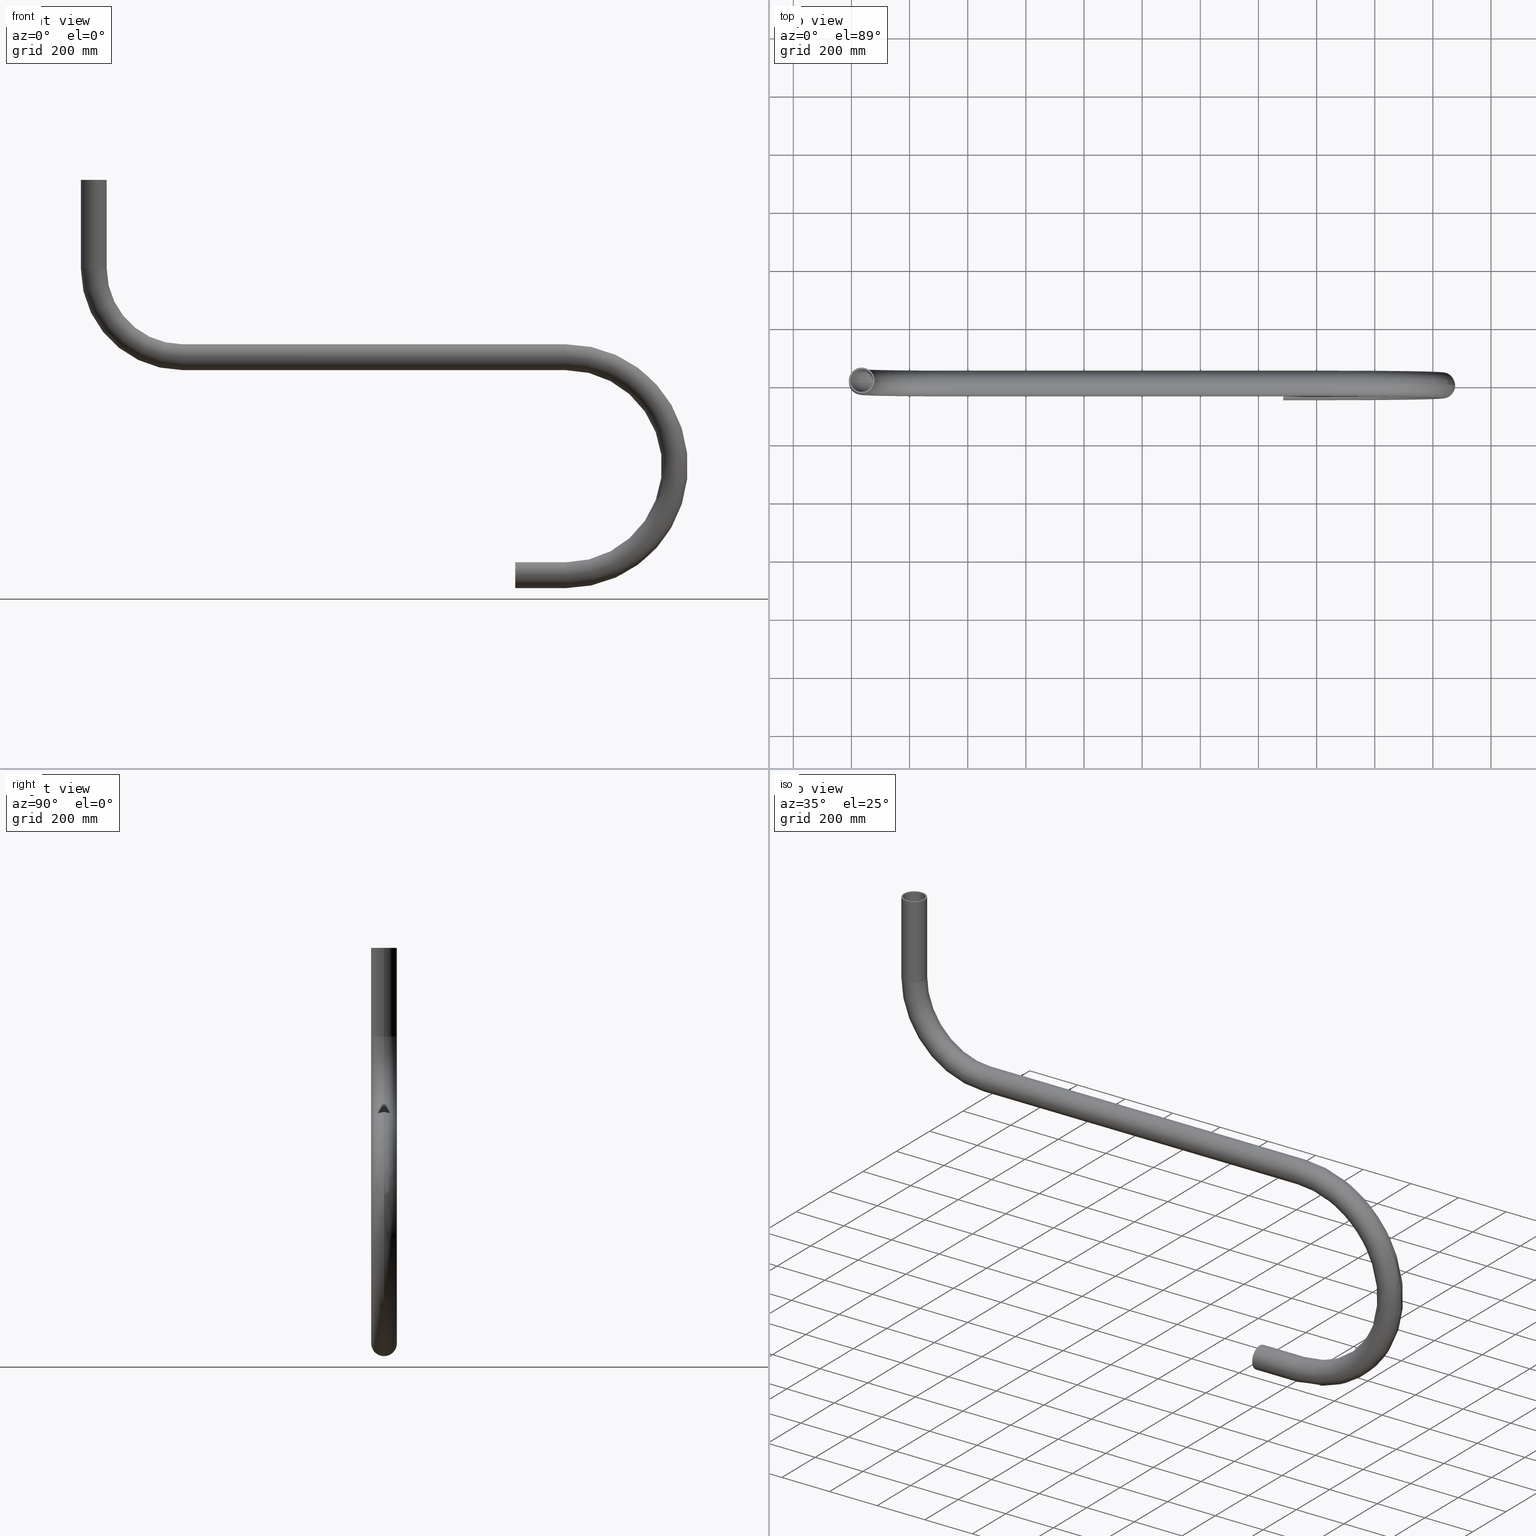
[diagram: canonical four-view strip — front | top / right | iso, engineering-drawing reading convention]
A machine part, canonical four-view strip (front | top / right | iso — engineering-drawing reading convention). The complete STEP part file that produces these views, byte-faithful:
ISO-10303-21;
HEADER;
FILE_DESCRIPTION (( 'STEP AP203' ),
    '1' );
FILE_NAME ('J003435-68A_REV_A.step',
    '2025-10-22T20:31:22',
    ( '' ),
    ( '' ),
    'SwSTEP 2.0',
    'SolidWorks 2024',
    '' );
FILE_SCHEMA (( 'CONFIG_CONTROL_DESIGN' ));
ENDSEC;

DATA;
#1 = DIRECTION ( 'NONE',  ( 0.000000000000000000, 0.000000000000000000, 1.000000000000000000 ) ) ;
#2 = CIRCLE ( 'NONE', #87, 44.44999999999998863 ) ;
#3 = AXIS2_PLACEMENT_3D ( 'NONE', #45, #150, #295 ) ;
#4 = EDGE_LOOP ( 'NONE', ( #307, #152, #154, #271 ) ) ;
#5 = CARTESIAN_POINT ( 'NONE',  ( -1003.449999999999932, 4.769999282678943171E-15, 305.0000000000001137 ) ) ;
#6 = CARTESIAN_POINT ( 'NONE',  ( 485.5000000000002842, 0.000000000000000000, -788.9499999999997044 ) ) ;
#7 = EDGE_LOOP ( 'NONE', ( #313, #25, #97, #47 ) ) ;
#8 = EDGE_CURVE ( 'NONE', #515, #427, #243, .T. ) ;
#9 = COORDINATED_UNIVERSAL_TIME_OFFSET ( 10, 0, .AHEAD. ) ;
#10 = CARTESIAN_POINT ( 'NONE',  ( -964.4999999999998863, 0.000000000000000000, 305.0000000000001137 ) ) ;
#11 = VERTEX_POINT ( 'NONE', #35 ) ;
#12 = APPROVAL_ROLE ( '' ) ;
#13 = CARTESIAN_POINT ( 'NONE',  ( -964.5000000000000000, 0.000000000000000000, 305.0000000000001137 ) ) ;
#14 = EDGE_LOOP ( 'NONE', ( #60, #598, #172, #167 ) ) ;
#15 = AXIS2_PLACEMENT_3D ( 'NONE', #13, #403, #414 ) ;
#16 = FACE_OUTER_BOUND ( 'NONE', #269, .T. ) ;
#17 = ORIENTED_EDGE ( 'NONE', *, *, #26, .F. ) ;
#18 = DIRECTION ( 'NONE',  ( 0.000000000000000000, 0.000000000000000000, -1.000000000000000000 ) ) ;
#19 = ORIENTED_EDGE ( 'NONE', *, *, #347, .T. ) ;
#20 = APPROVAL ( #219, 'UNSPECIFIED' ) ;
#21 = CARTESIAN_POINT ( 'NONE',  ( 659.4999999999994316, 4.769999282678947116E-15, -38.95000000000001705 ) ) ;
#22 = ORIENTED_EDGE ( 'NONE', *, *, #231, .T. ) ;
#23 = TOROIDAL_SURFACE ( 'NONE', #53, 374.9999999999998863, 44.45000000000000995 ) ;
#24 = DIRECTION ( 'NONE',  ( 0.000000000000000000, 0.000000000000000000, 1.000000000000000000 ) ) ;
#25 = ORIENTED_EDGE ( 'NONE', *, *, #378, .T. ) ;
#26 = EDGE_CURVE ( 'NONE', #93, #451, #32, .T. ) ;
#27 = EDGE_CURVE ( 'NONE', #453, #257, #382, .T. ) ;
#28 = CYLINDRICAL_SURFACE ( 'NONE', #454, 38.95000000000001705 ) ;
#29 = CARTESIAN_POINT ( 'NONE',  ( -920.0500000000000682, 0.000000000000000000, 305.0000000000001137 ) ) ;
#30 = DIRECTION ( 'NONE',  ( 0.000000000000000000, 0.000000000000000000, 1.000000000000000000 ) ) ;
#31 = DIRECTION ( 'NONE',  ( -1.000000000000000000, 0.000000000000000000, -6.123233995736763571E-17 ) ) ;
#32 = CIRCLE ( 'NONE', #325, 38.94999999999993179 ) ;
#33 = TOROIDAL_SURFACE ( 'NONE', #581, 305.0000000000001137, 44.45000000000000995 ) ;
#34 = CARTESIAN_POINT ( 'NONE',  ( 485.5000000000002842, 4.769999282678940805E-15, -711.0499999999996135 ) ) ;
#35 = CARTESIAN_POINT ( 'NONE',  ( -659.5000000000000000, 0.000000000000000000, 44.45000000000000995 ) ) ;
#36 = FACE_OUTER_BOUND ( 'NONE', #320, .T. ) ;
#37 = DIRECTION ( 'NONE',  ( -1.000000000000000000, 0.000000000000000000, 0.000000000000000000 ) ) ;
#38 = CARTESIAN_POINT ( 'NONE',  ( 659.5000000000000000, 0.000000000000000000, -374.9999999999999432 ) ) ;
#39 = EDGE_CURVE ( 'NONE', #55, #245, #40, .T. ) ;
#40 = CIRCLE ( 'NONE', #223, 38.95000000000003837 ) ;
#41 = CARTESIAN_POINT ( 'NONE',  ( 485.5000000000002842, 0.000000000000000000, -788.9499999999997044 ) ) ;
#42 = AXIS2_PLACEMENT_3D ( 'NONE', #619, #227, #176 ) ;
#43 = EDGE_LOOP ( 'NONE', ( #163, #186, #508, #221 ) ) ;
#44 = EDGE_CURVE ( 'NONE', #529, #55, #159, .T. ) ;
#45 = CARTESIAN_POINT ( 'NONE',  ( -659.4999999999998863, 0.000000000000000000, 305.0000000000001137 ) ) ;
#46 = EDGE_CURVE ( 'NONE', #404, #261, #394, .T. ) ;
#47 = ORIENTED_EDGE ( 'NONE', *, *, #565, .F. ) ;
#48 =( NAMED_UNIT ( * ) PLANE_ANGLE_UNIT ( ) SI_UNIT ( $, .RADIAN. ) );
#49 = DIRECTION ( 'NONE',  ( 1.000000000000000000, -0.000000000000000000, -0.000000000000000000 ) ) ;
#50 = ORIENTED_EDGE ( 'NONE', *, *, #76, .F. ) ;
#51 = DIRECTION ( 'NONE',  ( 1.000000000000000000, 0.000000000000000000, -6.123233995736768501E-17 ) ) ;
#52 = DIRECTION ( 'NONE',  ( 0.000000000000000000, 0.000000000000000000, -1.000000000000000000 ) ) ;
#53 = AXIS2_PLACEMENT_3D ( 'NONE', #470, #228, #633 ) ;
#54 = EDGE_CURVE ( 'NONE', #376, #623, #387, .T. ) ;
#55 = VERTEX_POINT ( 'NONE', #127 ) ;
#56 = APPROVAL_STATUS ( 'not_yet_approved' ) ;
#57 = DIRECTION ( 'NONE',  ( -2.465190328815661892E-32, 0.000000000000000000, -1.000000000000000000 ) ) ;
#58 = ORIENTED_EDGE ( 'NONE', *, *, #420, .F. ) ;
#59 = CARTESIAN_POINT ( 'NONE',  ( 659.5000000000000000, 0.000000000000000000, -749.9999999999997726 ) ) ;
#60 = ORIENTED_EDGE ( 'NONE', *, *, #168, .F. ) ;
#61 = CARTESIAN_POINT ( 'NONE',  ( 659.4999999999998863, 0.000000000000000000, 38.95000000000001705 ) ) ;
#62 = MANIFOLD_SOLID_BREP ( 'Stainless chs 88.9 X 5.5 CHS(1)', #602 ) ;
#63 = AXIS2_PLACEMENT_3D ( 'NONE', #645, #334, #177 ) ;
#64 = EDGE_LOOP ( 'NONE', ( #419, #415, #224, #238 ) ) ;
#65 = AXIS2_PLACEMENT_3D ( 'NONE', #321, #523, #24 ) ;
#66 = CC_DESIGN_APPROVAL ( #474, ( #592 ) ) ;
#67 = SHAPE_DEFINITION_REPRESENTATION ( #189, #629 ) ;
#68 = CARTESIAN_POINT ( 'NONE',  ( 485.5000000000002842, 5.443555022209986486E-15, -705.5499999999997272 ) ) ;
#69 = ORIENTED_EDGE ( 'NONE', *, *, #78, .F. ) ;
#70 = DATE_TIME_ROLE ( 'classification_date' ) ;
#71 = CARTESIAN_POINT ( 'NONE',  ( 659.5000000000000000, 0.000000000000000000, -374.9999999999999432 ) ) ;
#72 = ORIENTED_EDGE ( 'NONE', *, *, #44, .T. ) ;
#73 = CARTESIAN_POINT ( 'NONE',  ( -659.4999999999998863, 0.000000000000000000, 305.0000000000001137 ) ) ;
#74 = ORIENTED_EDGE ( 'NONE', *, *, #537, .T. ) ;
#75 = AXIS2_PLACEMENT_3D ( 'NONE', #153, #156, #507 ) ;
#76 = EDGE_CURVE ( 'NONE', #502, #376, #274, .T. ) ;
#77 = AXIS2_PLACEMENT_3D ( 'NONE', #441, #589, #230 ) ;
#78 = EDGE_CURVE ( 'NONE', #11, #261, #476, .T. ) ;
#79 = AXIS2_PLACEMENT_3D ( 'NONE', #73, #368, #80 ) ;
#80 = DIRECTION ( 'NONE',  ( 0.000000000000000000, 0.000000000000000000, 1.000000000000000000 ) ) ;
#81 = PLANE ( 'NONE',  #546 ) ;
#82 = CC_DESIGN_DATE_AND_TIME_ASSIGNMENT ( #370, #70, ( #327 ) ) ;
#83 = CARTESIAN_POINT ( 'NONE',  ( -1008.950000000000045, 5.443555022209988853E-15, 305.0000000000001137 ) ) ;
#84 = DIRECTION ( 'NONE',  ( 0.000000000000000000, 0.000000000000000000, 1.000000000000000000 ) ) ;
#85 = CARTESIAN_POINT ( 'NONE',  ( 659.5000000000000000, 5.443555022209975442E-15, -705.5499999999998408 ) ) ;
#86 = DIRECTION ( 'NONE',  ( 0.000000000000000000, 0.000000000000000000, 1.000000000000000000 ) ) ;
#87 = AXIS2_PLACEMENT_3D ( 'NONE', #59, #601, #253 ) ;
#88 = LINE ( 'NONE', #41, #130 ) ;
#89 = DIRECTION ( 'NONE',  ( 1.000000000000000000, 0.000000000000000000, -6.123233995736768501E-17 ) ) ;
#90 = DIRECTION ( 'NONE',  ( 1.000000000000000000, -0.000000000000000000, -0.000000000000000000 ) ) ;
#91 = DIRECTION ( 'NONE',  ( -6.123233995736763571E-17, 0.000000000000000000, 1.000000000000000000 ) ) ;
#92 = DIRECTION ( 'NONE',  ( -1.000000000000000000, -0.000000000000000000, 6.123233995736768501E-17 ) ) ;
#93 = VERTEX_POINT ( 'NONE', #331 ) ;
#94 = ADVANCED_FACE ( 'NONE', ( #135 ), #179, .T. ) ;
#95 = EDGE_CURVE ( 'NONE', #369, #296, #128, .T. ) ;
#96 = VECTOR ( 'NONE', #264, 1000.000000000000000 ) ;
#97 = ORIENTED_EDGE ( 'NONE', *, *, #162, .T. ) ;
#98 = CARTESIAN_POINT ( 'NONE',  ( -659.5000000000000000, 0.000000000000000000, 0.000000000000000000 ) ) ;
#99 = ORIENTED_EDGE ( 'NONE', *, *, #280, .F. ) ;
#100 = FACE_BOUND ( 'NONE', #209, .T. ) ;
#101 = DIRECTION ( 'NONE',  ( 0.000000000000000000, 0.000000000000000000, -1.000000000000000000 ) ) ;
#102 = VERTEX_POINT ( 'NONE', #282 ) ;
#103 = PLANE ( 'NONE',  #615 ) ;
#104 = FACE_OUTER_BOUND ( 'NONE', #64, .T. ) ;
#105 = AXIS2_PLACEMENT_3D ( 'NONE', #640, #491, #183 ) ;
#106 = VECTOR ( 'NONE', #372, 1000.000000000000000 ) ;
#107 = AXIS2_PLACEMENT_3D ( 'NONE', #354, #51, #348 ) ;
#108 = ORIENTED_EDGE ( 'NONE', *, *, #533, .F. ) ;
#109 = PERSON_AND_ORGANIZATION ( #392, #479 ) ;
#110 = CYLINDRICAL_SURFACE ( 'NONE', #75, 44.44999999999998863 ) ;
#111 = ORIENTED_EDGE ( 'NONE', *, *, #54, .F. ) ;
#112 = DIRECTION ( 'NONE',  ( -0.000000000000000000, 1.000000000000000000, -0.000000000000000000 ) ) ;
#113 = VERTEX_POINT ( 'NONE', #430 ) ;
#114 = EDGE_CURVE ( 'NONE', #261, #404, #463, .T. ) ;
#115 = COORDINATED_UNIVERSAL_TIME_OFFSET ( 10, 0, .AHEAD. ) ;
#116 = EDGE_CURVE ( 'NONE', #451, #93, #190, .T. ) ;
#117 = CARTESIAN_POINT ( 'NONE',  ( 659.5000000000000000, -4.769999282678943171E-15, -374.9999999999999432 ) ) ;
#118 = ORIENTED_EDGE ( 'NONE', *, *, #279, .F. ) ;
#119 = CIRCLE ( 'NONE', #139, 38.95000000000003837 ) ;
#120 = DIRECTION ( 'NONE',  ( -1.000000000000000000, -0.000000000000000000, 6.123233995736768501E-17 ) ) ;
#121 = ORIENTED_EDGE ( 'NONE', *, *, #420, .T. ) ;
#122 = PERSON_AND_ORGANIZATION ( #392, #479 ) ;
#123 = ADVANCED_FACE ( 'NONE', ( #379, #484 ), #81, .T. ) ;
#124 = ORIENTED_EDGE ( 'NONE', *, *, #585, .F. ) ;
#125 = PERSON_AND_ORGANIZATION_ROLE ( 'design_supplier' ) ;
#126 = FACE_OUTER_BOUND ( 'NONE', #618, .T. ) ;
#127 = CARTESIAN_POINT ( 'NONE',  ( -925.5499999999998408, 0.000000000000000000, 305.0000000000001137 ) ) ;
#128 = CIRCLE ( 'NONE', #273, 44.45000000000000995 ) ;
#129 = VECTOR ( 'NONE', #120, 1000.000000000000000 ) ;
#130 = VECTOR ( 'NONE', #90, 1000.000000000000000 ) ;
#131 = LINE ( 'NONE', #626, #129 ) ;
#132 = DIRECTION ( 'NONE',  ( 0.000000000000000000, 0.000000000000000000, 1.000000000000000000 ) ) ;
#133 = EDGE_LOOP ( 'NONE', ( #553, #651 ) ) ;
#134 = LINE ( 'NONE', #593, #526 ) ;
#135 = FACE_OUTER_BOUND ( 'NONE', #7, .T. ) ;
#136 = DIRECTION ( 'NONE',  ( 1.000000000000000000, 0.000000000000000000, -1.820037745287141918E-16 ) ) ;
#137 = DIRECTION ( 'NONE',  ( -1.000000000000000000, -0.000000000000000000, 6.123233995736768501E-17 ) ) ;
#138 = DIRECTION ( 'NONE',  ( -0.000000000000000000, -0.000000000000000000, 1.000000000000000000 ) ) ;
#139 = AXIS2_PLACEMENT_3D ( 'NONE', #165, #365, #567 ) ;
#140 = FACE_OUTER_BOUND ( 'NONE', #146, .T. ) ;
#141 = LOCAL_TIME ( 7, 31, 22.00000000000000000, #210 ) ;
#142 = DIRECTION ( 'NONE',  ( -2.465190328815661892E-32, 0.000000000000000000, -1.000000000000000000 ) ) ;
#143 = CARTESIAN_POINT ( 'NONE',  ( 485.5000000000002842, 0.000000000000000000, -749.9999999999996589 ) ) ;
#144 = EDGE_CURVE ( 'NONE', #261, #366, #482, .T. ) ;
#145 = EDGE_CURVE ( 'NONE', #55, #93, #588, .T. ) ;
#146 = EDGE_LOOP ( 'NONE', ( #423, #288, #620, #498 ) ) ;
#147 = DIRECTION ( 'NONE',  ( 1.000000000000000000, -0.000000000000000000, -0.000000000000000000 ) ) ;
#148 = ORIENTED_EDGE ( 'NONE', *, *, #532, .T. ) ;
#149 = AXIS2_PLACEMENT_3D ( 'NONE', #562, #356, #203 ) ;
#150 = DIRECTION ( 'NONE',  ( -0.000000000000000000, 1.000000000000000000, -0.000000000000000000 ) ) ;
#151 = CARTESIAN_POINT ( 'NONE',  ( 485.5000000000002842, 4.769999282678943171E-15, -711.0499999999996135 ) ) ;
#152 = ORIENTED_EDGE ( 'NONE', *, *, #114, .F. ) ;
#153 = CARTESIAN_POINT ( 'NONE',  ( -964.5000000000000000, 0.000000000000000000, 305.0000000000001137 ) ) ;
#154 = ORIENTED_EDGE ( 'NONE', *, *, #144, .T. ) ;
#155 = CARTESIAN_POINT ( 'NONE',  ( -964.5000000000000000, 0.000000000000000000, 609.9999999999998863 ) ) ;
#156 = DIRECTION ( 'NONE',  ( -0.000000000000000000, -0.000000000000000000, 1.000000000000000000 ) ) ;
#157 = ORIENTED_EDGE ( 'NONE', *, *, #212, .T. ) ;
#158 = DIRECTION ( 'NONE',  ( 0.000000000000000000, 0.000000000000000000, 1.000000000000000000 ) ) ;
#159 = CIRCLE ( 'NONE', #486, 266.0500000000000682 ) ;
#160 = DIRECTION ( 'NONE',  ( 0.000000000000000000, 0.000000000000000000, 1.000000000000000000 ) ) ;
#161 = AXIS2_PLACEMENT_3D ( 'NONE', #543, #237, #641 ) ;
#162 = EDGE_CURVE ( 'NONE', #459, #11, #637, .T. ) ;
#163 = ORIENTED_EDGE ( 'NONE', *, *, #512, .F. ) ;
#164 = PERSON_AND_ORGANIZATION_ROLE ( 'creator' ) ;
#165 = CARTESIAN_POINT ( 'NONE',  ( 485.5000000000002842, 0.000000000000000000, -749.9999999999996589 ) ) ;
#166 = ADVANCED_FACE ( 'NONE', ( #104 ), #198, .F. ) ;
#167 = ORIENTED_EDGE ( 'NONE', *, *, #8, .T. ) ;
#168 = EDGE_CURVE ( 'NONE', #296, #427, #648, .T. ) ;
#169 = CYLINDRICAL_SURFACE ( 'NONE', #316, 38.95000000000003837 ) ;
#170 = ORIENTED_EDGE ( 'NONE', *, *, #26, .T. ) ;
#171 = FACE_OUTER_BOUND ( 'NONE', #235, .T. ) ;
#172 = ORIENTED_EDGE ( 'NONE', *, *, #513, .T. ) ;
#173 = CIRCLE ( 'NONE', #505, 44.44999999999998863 ) ;
#174 = DIRECTION ( 'NONE',  ( 0.000000000000000000, 0.000000000000000000, 1.000000000000000000 ) ) ;
#175 = EDGE_LOOP ( 'NONE', ( #580, #310, #19, #148 ) ) ;
#176 = DIRECTION ( 'NONE',  ( -1.000000000000000000, 0.000000000000000000, 0.000000000000000000 ) ) ;
#177 = DIRECTION ( 'NONE',  ( -1.000000000000000000, 0.000000000000000000, 0.000000000000000000 ) ) ;
#178 = DIRECTION ( 'NONE',  ( -0.000000000000000000, 1.000000000000000000, -0.000000000000000000 ) ) ;
#179 = CYLINDRICAL_SURFACE ( 'NONE', #416, 44.45000000000000995 ) ;
#180 = AXIS2_PLACEMENT_3D ( 'NONE', #319, #576, #578 ) ;
#181 =( GEOMETRIC_REPRESENTATION_CONTEXT ( 3 ) GLOBAL_UNCERTAINTY_ASSIGNED_CONTEXT ( ( #561 ) ) GLOBAL_UNIT_ASSIGNED_CONTEXT ( ( #251, #48, #549 ) ) REPRESENTATION_CONTEXT ( 'NONE', 'WORKASPACE' ) );
#182 = DIRECTION ( 'NONE',  ( 0.000000000000000000, 0.000000000000000000, 1.000000000000000000 ) ) ;
#183 = DIRECTION ( 'NONE',  ( 0.000000000000000000, 0.000000000000000000, 1.000000000000000000 ) ) ;
#184 = ADVANCED_FACE ( 'NONE', ( #455 ), #249, .T. ) ;
#185 = DIRECTION ( 'NONE',  ( 1.000000000000000000, 0.000000000000000000, -6.123233995736768501E-17 ) ) ;
#186 = ORIENTED_EDGE ( 'NONE', *, *, #492, .F. ) ;
#187 = DIRECTION ( 'NONE',  ( -1.000000000000000000, 0.000000000000000000, 6.123233995736768501E-17 ) ) ;
#188 = DIRECTION ( 'NONE',  ( -1.000000000000000000, -0.000000000000000000, 6.123233995736768501E-17 ) ) ;
#189 = PRODUCT_DEFINITION_SHAPE ( 'NONE', 'NONE',  #592 ) ;
#190 = CIRCLE ( 'NONE', #200, 38.94999999999993179 ) ;
#191 = CIRCLE ( 'NONE', #649, 44.44999999999998863 ) ;
#192 = ADVANCED_FACE ( 'NONE', ( #461 ), #110, .T. ) ;
#193 = CARTESIAN_POINT ( 'NONE',  ( 485.5000000000002842, 0.000000000000000000, -749.9999999999996589 ) ) ;
#194 = LOCAL_TIME ( 7, 31, 22.00000000000000000, #115 ) ;
#195 = CARTESIAN_POINT ( 'NONE',  ( 659.5000000000000000, 0.000000000000000000, -749.9999999999997726 ) ) ;
#196 = EDGE_LOOP ( 'NONE', ( #99, #218 ) ) ;
#197 = APPLICATION_PROTOCOL_DEFINITION ( 'international standard', 'config_control_design', 1994, #311 ) ;
#198 = CYLINDRICAL_SURFACE ( 'NONE', #371, 38.95000000000001705 ) ;
#199 = ORIENTED_EDGE ( 'NONE', *, *, #297, .T. ) ;
#200 = AXIS2_PLACEMENT_3D ( 'NONE', #643, #632, #490 ) ;
#201 = CIRCLE ( 'NONE', #373, 349.4500000000001023 ) ;
#202 = TOROIDAL_SURFACE ( 'NONE', #3, 305.0000000000001137, 38.95000000000001705 ) ;
#203 = DIRECTION ( 'NONE',  ( 0.000000000000000000, 0.000000000000000000, 1.000000000000000000 ) ) ;
#204 = ORIENTED_EDGE ( 'NONE', *, *, #44, .F. ) ;
#205 = CARTESIAN_POINT ( 'NONE',  ( -659.4999999999998863, 0.000000000000000000, 305.0000000000001137 ) ) ;
#206 = ORIENTED_EDGE ( 'NONE', *, *, #610, .T. ) ;
#207 = LINE ( 'NONE', #5, #444 ) ;
#208 = DIRECTION ( 'NONE',  ( 1.000000000000000000, -0.000000000000000000, -0.000000000000000000 ) ) ;
#209 = EDGE_LOOP ( 'NONE', ( #170, #614 ) ) ;
#210 = COORDINATED_UNIVERSAL_TIME_OFFSET ( 10, 0, .AHEAD. ) ;
#211 = AXIS2_PLACEMENT_3D ( 'NONE', #98, #298, #101 ) ;
#212 = EDGE_CURVE ( 'NONE', #502, #275, #344, .T. ) ;
#213 = DIRECTION ( 'NONE',  ( -0.000000000000000000, 1.000000000000000000, -0.000000000000000000 ) ) ;
#214 = CIRCLE ( 'NONE', #276, 38.95000000000001705 ) ;
#215 = ADVANCED_FACE ( 'NONE', ( #352 ), #442, .T. ) ;
#216 = ORIENTED_EDGE ( 'NONE', *, *, #513, .F. ) ;
#217 = CARTESIAN_POINT ( 'NONE',  ( 659.5000000000000000, 0.000000000000000000, -794.4499999999998181 ) ) ;
#218 = ORIENTED_EDGE ( 'NONE', *, *, #27, .F. ) ;
#219 = APPROVAL_STATUS ( 'not_yet_approved' ) ;
#220 = DIRECTION ( 'NONE',  ( 0.000000000000000000, 0.000000000000000000, 1.000000000000000000 ) ) ;
#221 = ORIENTED_EDGE ( 'NONE', *, *, #114, .T. ) ;
#222 = DIRECTION ( 'NONE',  ( 1.000000000000000000, -0.000000000000000000, -0.000000000000000000 ) ) ;
#223 = AXIS2_PLACEMENT_3D ( 'NONE', #539, #142, #389 ) ;
#224 = ORIENTED_EDGE ( 'NONE', *, *, #563, .T. ) ;
#225 = AXIS2_PLACEMENT_3D ( 'NONE', #10, #57, #305 ) ;
#226 = TOROIDAL_SURFACE ( 'NONE', #639, 374.9999999999998863, 38.95000000000001705 ) ;
#227 = DIRECTION ( 'NONE',  ( -2.465190328815661892E-32, 0.000000000000000000, -1.000000000000000000 ) ) ;
#228 = DIRECTION ( 'NONE',  ( -0.000000000000000000, 1.000000000000000000, -0.000000000000000000 ) ) ;
#229 = CARTESIAN_POINT ( 'NONE',  ( -659.4999999999998863, -4.769999282678943171E-15, 305.0000000000001137 ) ) ;
#230 = DIRECTION ( 'NONE',  ( 0.000000000000000000, 0.000000000000000000, -1.000000000000000000 ) ) ;
#231 = EDGE_CURVE ( 'NONE', #427, #515, #2, .T. ) ;
#232 = DIRECTION ( 'NONE',  ( -0.000000000000000000, -0.000000000000000000, 1.000000000000000000 ) ) ;
#233 = EDGE_CURVE ( 'NONE', #245, #55, #478, .T. ) ;
#234 = AXIS2_PLACEMENT_3D ( 'NONE', #260, #112, #555 ) ;
#235 = EDGE_LOOP ( 'NONE', ( #556, #604, #302, #564 ) ) ;
#236 = APPROVAL_PERSON_ORGANIZATION ( #566, #20, #314 ) ;
#237 = DIRECTION ( 'NONE',  ( -0.000000000000000000, 1.000000000000000000, -0.000000000000000000 ) ) ;
#238 = ORIENTED_EDGE ( 'NONE', *, *, #297, .F. ) ;
#239 = DIRECTION ( 'NONE',  ( -0.000000000000000000, -0.000000000000000000, 1.000000000000000000 ) ) ;
#240 = DIRECTION ( 'NONE',  ( 1.000000000000000000, -0.000000000000000000, -6.123233995736768501E-17 ) ) ;
#241 = CC_DESIGN_PERSON_AND_ORGANIZATION_ASSIGNMENT ( #402, #164, ( #592 ) ) ;
#242 = FACE_OUTER_BOUND ( 'NONE', #551, .T. ) ;
#243 = CIRCLE ( 'NONE', #613, 44.44999999999998863 ) ;
#244 = DIRECTION ( 'NONE',  ( 0.000000000000000000, 0.000000000000000000, 1.000000000000000000 ) ) ;
#245 = VERTEX_POINT ( 'NONE', #309 ) ;
#246 = APPLICATION_CONTEXT ( 'configuration controlled 3d designs of mechanical parts and assemblies' ) ;
#247 = DIRECTION ( 'NONE',  ( -0.000000000000000000, -0.000000000000000000, 1.000000000000000000 ) ) ;
#248 = ORIENTED_EDGE ( 'NONE', *, *, #8, .F. ) ;
#249 = CYLINDRICAL_SURFACE ( 'NONE', #646, 44.44999999999998863 ) ;
#250 = ORIENTED_EDGE ( 'NONE', *, *, #445, .T. ) ;
#251 =( LENGTH_UNIT ( ) NAMED_UNIT ( * ) SI_UNIT ( .MILLI., .METRE. ) );
#252 = CIRCLE ( 'NONE', #161, 330.5499999999998977 ) ;
#253 = DIRECTION ( 'NONE',  ( 0.000000000000000000, 0.000000000000000000, 1.000000000000000000 ) ) ;
#254 = ORIENTED_EDGE ( 'NONE', *, *, #279, .T. ) ;
#255 = COORDINATED_UNIVERSAL_TIME_OFFSET ( 10, 0, .AHEAD. ) ;
#256 = FACE_OUTER_BOUND ( 'NONE', #608, .T. ) ;
#257 = VERTEX_POINT ( 'NONE', #6 ) ;
#258 = ADVANCED_FACE ( 'NONE', ( #510 ), #552, .T. ) ;
#259 = ADVANCED_FACE ( 'NONE', ( #256 ), #33, .T. ) ;
#260 = CARTESIAN_POINT ( 'NONE',  ( 659.5000000000000000, 0.000000000000000000, -374.9999999999999432 ) ) ;
#261 = VERTEX_POINT ( 'NONE', #514 ) ;
#262 = COORDINATED_UNIVERSAL_TIME_OFFSET ( 10, 0, .AHEAD. ) ;
#263 = AXIS2_PLACEMENT_3D ( 'NONE', #535, #488, #432 ) ;
#264 = DIRECTION ( 'NONE',  ( -1.000000000000000000, -0.000000000000000000, 6.123233995736768501E-17 ) ) ;
#265 = CIRCLE ( 'NONE', #79, 343.9500000000001592 ) ;
#266 = ORIENTED_EDGE ( 'NONE', *, *, #375, .T. ) ;
#267 = DATE_AND_TIME ( #475, #194 ) ;
#268 = DIRECTION ( 'NONE',  ( -1.000000000000000000, 0.000000000000000000, 0.000000000000000000 ) ) ;
#269 = EDGE_LOOP ( 'NONE', ( #520, #448, #605, #124 ) ) ;
#270 = CYLINDRICAL_SURFACE ( 'NONE', #547, 38.95000000000003837 ) ;
#271 = ORIENTED_EDGE ( 'NONE', *, *, #380, .T. ) ;
#272 = DIRECTION ( 'NONE',  ( 1.000000000000000000, 0.000000000000000000, 0.000000000000000000 ) ) ;
#273 = AXIS2_PLACEMENT_3D ( 'NONE', #531, #635, #84 ) ;
#274 = CIRCLE ( 'NONE', #303, 38.95000000000001705 ) ;
#275 = VERTEX_POINT ( 'NONE', #301 ) ;
#276 = AXIS2_PLACEMENT_3D ( 'NONE', #489, #185, #397 ) ;
#277 = CARTESIAN_POINT ( 'NONE',  ( -964.5000000000000000, 0.000000000000000000, 609.9999999999998863 ) ) ;
#278 = CARTESIAN_POINT ( 'NONE',  ( 485.5000000000002842, 0.000000000000000000, -749.9999999999996589 ) ) ;
#279 = EDGE_CURVE ( 'NONE', #627, #427, #418, .T. ) ;
#280 = EDGE_CURVE ( 'NONE', #257, #453, #119, .T. ) ;
#281 = CARTESIAN_POINT ( 'NONE',  ( -659.4999999999998863, 0.000000000000000000, 305.0000000000001137 ) ) ;
#282 = CARTESIAN_POINT ( 'NONE',  ( 485.5000000000002842, 5.443555022209988853E-15, -705.5499999999997272 ) ) ;
#283 = DIRECTION ( 'NONE',  ( 0.000000000000000000, 0.000000000000000000, 1.000000000000000000 ) ) ;
#284 = CARTESIAN_POINT ( 'NONE',  ( 659.4999999999994316, 0.000000000000000000, 2.540718180781213269E-30 ) ) ;
#285 = VECTOR ( 'NONE', #138, 1000.000000000000000 ) ;
#286 = AXIS2_PLACEMENT_3D ( 'NONE', #335, #147, #599 ) ;
#287 = DIRECTION ( 'NONE',  ( -1.000000000000000000, 0.000000000000000000, 6.123233995736768501E-17 ) ) ;
#288 = ORIENTED_EDGE ( 'NONE', *, *, #233, .T. ) ;
#289 = FACE_OUTER_BOUND ( 'NONE', #524, .T. ) ;
#290 = EDGE_LOOP ( 'NONE', ( #568, #469, #72, #511 ) ) ;
#291 = CC_DESIGN_PERSON_AND_ORGANIZATION_ASSIGNMENT ( #367, #125, ( #385 ) ) ;
#292 = DIRECTION ( 'NONE',  ( -1.000000000000000000, 0.000000000000000000, -6.123233995736763571E-17 ) ) ;
#293 = ORIENTED_EDGE ( 'NONE', *, *, #610, .F. ) ;
#294 = CC_DESIGN_APPROVAL ( #20, ( #327 ) ) ;
#295 = DIRECTION ( 'NONE',  ( 0.000000000000000000, 0.000000000000000000, 1.000000000000000000 ) ) ;
#296 = VERTEX_POINT ( 'NONE', #312 ) ;
#297 = EDGE_CURVE ( 'NONE', #502, #529, #407, .T. ) ;
#298 = DIRECTION ( 'NONE',  ( 1.000000000000000000, 0.000000000000000000, -1.820037745287141918E-16 ) ) ;
#299 = ORIENTED_EDGE ( 'NONE', *, *, #95, .T. ) ;
#300 = MECHANICAL_CONTEXT ( 'NONE', #246, 'mechanical' ) ;
#301 = CARTESIAN_POINT ( 'NONE',  ( 659.5000000000000000, 0.000000000000000000, -788.9499999999998181 ) ) ;
#302 = ORIENTED_EDGE ( 'NONE', *, *, #565, .T. ) ;
#303 = AXIS2_PLACEMENT_3D ( 'NONE', #284, #89, #584 ) ;
#304 = AXIS2_PLACEMENT_3D ( 'NONE', #117, #178, #220 ) ;
#305 = DIRECTION ( 'NONE',  ( 1.000000000000000000, 0.000000000000000000, 0.000000000000000000 ) ) ;
#306 = EDGE_CURVE ( 'NONE', #453, #548, #653, .T. ) ;
#307 = ORIENTED_EDGE ( 'NONE', *, *, #400, .F. ) ;
#308 = PERSON_AND_ORGANIZATION ( #392, #479 ) ;
#309 = CARTESIAN_POINT ( 'NONE',  ( -1003.449999999999932, 4.769999282678940805E-15, 305.0000000000001137 ) ) ;
#310 = ORIENTED_EDGE ( 'NONE', *, *, #537, .F. ) ;
#311 = APPLICATION_CONTEXT ( 'configuration controlled 3d designs of mechanical parts and assemblies' ) ;
#312 = CARTESIAN_POINT ( 'NONE',  ( 659.5000000000000000, 0.000000000000000000, 44.44999999999995310 ) ) ;
#313 = ORIENTED_EDGE ( 'NONE', *, *, #95, .F. ) ;
#314 = APPROVAL_ROLE ( '' ) ;
#315 = DIRECTION ( 'NONE',  ( -1.000000000000000000, -0.000000000000000000, 6.123233995736768501E-17 ) ) ;
#316 = AXIS2_PLACEMENT_3D ( 'NONE', #377, #569, #272 ) ;
#317 = APPROVAL_PERSON_ORGANIZATION ( #308, #450, #12 ) ;
#318 = ORIENTED_EDGE ( 'NONE', *, *, #145, .F. ) ;
#319 = CARTESIAN_POINT ( 'NONE',  ( -659.4999999999998863, 0.000000000000000000, 305.0000000000001137 ) ) ;
#320 = EDGE_LOOP ( 'NONE', ( #58, #293, #254, #248 ) ) ;
#321 = CARTESIAN_POINT ( 'NONE',  ( -659.4999999999998863, 0.000000000000000000, 305.0000000000001137 ) ) ;
#322 = ADVANCED_FACE ( 'NONE', ( #452 ), #383, .T. ) ;
#323 = EDGE_LOOP ( 'NONE', ( #111, #74, #199, #341 ) ) ;
#324 = CARTESIAN_POINT ( 'NONE',  ( 485.5000000000002842, 0.000000000000000000, -749.9999999999996589 ) ) ;
#325 = AXIS2_PLACEMENT_3D ( 'NONE', #336, #384, #590 ) ;
#326 = CARTESIAN_POINT ( 'NONE',  ( 659.4999999999998863, 4.769999282678942383E-15, -38.95000000000001705 ) ) ;
#327 = SECURITY_CLASSIFICATION ( '', '', #575 ) ;
#328 = ADVANCED_FACE ( 'NONE', ( #431 ), #23, .T. ) ;
#329 = ADVANCED_FACE ( 'NONE', ( #126 ), #169, .F. ) ;
#330 = DIRECTION ( 'NONE',  ( 0.000000000000000000, 0.000000000000000000, 1.000000000000000000 ) ) ;
#331 = CARTESIAN_POINT ( 'NONE',  ( -925.5499999999999545, 0.000000000000000000, 609.9999999999998863 ) ) ;
#332 = CC_DESIGN_PERSON_AND_ORGANIZATION_ASSIGNMENT ( #122, #628, ( #385 ) ) ;
#333 = DIRECTION ( 'NONE',  ( 1.000000000000000000, 0.000000000000000000, 0.000000000000000000 ) ) ;
#334 = DIRECTION ( 'NONE',  ( -2.465190328815661892E-32, 0.000000000000000000, -1.000000000000000000 ) ) ;
#335 = CARTESIAN_POINT ( 'NONE',  ( 485.5000000000002842, 0.000000000000000000, -749.9999999999996589 ) ) ;
#336 = CARTESIAN_POINT ( 'NONE',  ( -964.5000000000000000, 0.000000000000000000, 609.9999999999998863 ) ) ;
#337 = CIRCLE ( 'NONE', #358, 38.95000000000001705 ) ;
#338 = AXIS2_PLACEMENT_3D ( 'NONE', #195, #187, #536 ) ;
#339 = CARTESIAN_POINT ( 'NONE',  ( -964.5000000000000000, 0.000000000000000000, 305.0000000000001137 ) ) ;
#340 = DIRECTION ( 'NONE',  ( 1.000000000000000000, -0.000000000000000000, -0.000000000000000000 ) ) ;
#341 = ORIENTED_EDGE ( 'NONE', *, *, #466, .T. ) ;
#342 = CYLINDRICAL_SURFACE ( 'NONE', #558, 38.95000000000003837 ) ;
#343 = ORIENTED_EDGE ( 'NONE', *, *, #162, .F. ) ;
#344 = CIRCLE ( 'NONE', #149, 413.9499999999999318 ) ;
#345 = ADVANCED_FACE ( 'NONE', ( #16 ), #270, .F. ) ;
#346 = AXIS2_PLACEMENT_3D ( 'NONE', #71, #631, #174 ) ;
#347 = EDGE_CURVE ( 'NONE', #376, #548, #395, .T. ) ;
#348 = DIRECTION ( 'NONE',  ( 0.000000000000000000, 0.000000000000000000, 1.000000000000000000 ) ) ;
#349 = DIRECTION ( 'NONE',  ( 0.000000000000000000, 0.000000000000000000, 1.000000000000000000 ) ) ;
#350 = ORIENTED_EDGE ( 'NONE', *, *, #39, .T. ) ;
#351 = CARTESIAN_POINT ( 'NONE',  ( 0.000000000000000000, 0.000000000000000000, 0.000000000000000000 ) ) ;
#352 = FACE_OUTER_BOUND ( 'NONE', #456, .T. ) ;
#353 = ORIENTED_EDGE ( 'NONE', *, *, #532, .F. ) ;
#354 = CARTESIAN_POINT ( 'NONE',  ( 659.5000000000000000, 0.000000000000000000, -5.551115123125782702E-14 ) ) ;
#355 = ADVANCED_FACE ( 'NONE', ( #527 ), #28, .F. ) ;
#356 = DIRECTION ( 'NONE',  ( -0.000000000000000000, 1.000000000000000000, -0.000000000000000000 ) ) ;
#357 = ORIENTED_EDGE ( 'NONE', *, *, #533, .T. ) ;
#358 = AXIS2_PLACEMENT_3D ( 'NONE', #398, #391, #650 ) ;
#359 = DATE_AND_TIME ( #457, #559 ) ;
#360 = CIRCLE ( 'NONE', #77, 38.95000000000001705 ) ;
#361 = CIRCLE ( 'NONE', #107, 44.45000000000000995 ) ;
#362 = CARTESIAN_POINT ( 'NONE',  ( 659.4999999999998863, 0.000000000000000000, -2.465190328815661892E-29 ) ) ;
#363 = ORIENTED_EDGE ( 'NONE', *, *, #400, .T. ) ;
#364 = DATE_AND_TIME ( #652, #141 ) ;
#365 = DIRECTION ( 'NONE',  ( -1.000000000000000000, 0.000000000000000000, -6.123233995736763571E-17 ) ) ;
#366 = VERTEX_POINT ( 'NONE', #422 ) ;
#367 = PERSON_AND_ORGANIZATION ( #392, #479 ) ;
#368 = DIRECTION ( 'NONE',  ( -0.000000000000000000, 1.000000000000000000, -0.000000000000000000 ) ) ;
#369 = VERTEX_POINT ( 'NONE', #424 ) ;
#370 = DATE_AND_TIME ( #525, #528 ) ;
#371 = AXIS2_PLACEMENT_3D ( 'NONE', #362, #458, #1 ) ;
#372 = DIRECTION ( 'NONE',  ( -0.000000000000000000, -0.000000000000000000, 1.000000000000000000 ) ) ;
#373 = AXIS2_PLACEMENT_3D ( 'NONE', #281, #483, #30 ) ;
#374 = ORIENTED_EDGE ( 'NONE', *, *, #512, .T. ) ;
#375 = EDGE_CURVE ( 'NONE', #623, #245, #265, .T. ) ;
#376 = VERTEX_POINT ( 'NONE', #21 ) ;
#377 = CARTESIAN_POINT ( 'NONE',  ( -964.5000000000000000, 0.000000000000000000, 305.0000000000001137 ) ) ;
#378 = EDGE_CURVE ( 'NONE', #369, #459, #131, .T. ) ;
#379 = FACE_BOUND ( 'NONE', #196, .T. ) ;
#380 = EDGE_CURVE ( 'NONE', #366, #113, #173, .T. ) ;
#381 = CYLINDRICAL_SURFACE ( 'NONE', #405, 44.45000000000000995 ) ;
#382 = CIRCLE ( 'NONE', #263, 38.95000000000003837 ) ;
#383 = TOROIDAL_SURFACE ( 'NONE', #180, 305.0000000000001137, 44.45000000000000995 ) ;
#384 = DIRECTION ( 'NONE',  ( -2.465190328815661892E-32, 0.000000000000000000, -1.000000000000000000 ) ) ;
#385 = PRODUCT_DEFINITION_FORMATION_WITH_SPECIFIED_SOURCE ( 'ANY', '', #642, .NOT_KNOWN. ) ;
#386 = CYLINDRICAL_SURFACE ( 'NONE', #425, 44.44999999999998863 ) ;
#387 = LINE ( 'NONE', #326, #594 ) ;
#388 = CARTESIAN_POINT ( 'NONE',  ( -659.5000000000000000, 0.000000000000000000, 38.95000000000001705 ) ) ;
#389 = DIRECTION ( 'NONE',  ( 1.000000000000000000, 0.000000000000000000, 0.000000000000000000 ) ) ;
#390 = PRODUCT_RELATED_PRODUCT_CATEGORY ( 'detail', '', ( #642 ) ) ;
#391 = DIRECTION ( 'NONE',  ( -1.000000000000000000, -0.000000000000000000, 1.820037745287141918E-16 ) ) ;
#392 = PERSON ( 'UNSPECIFIED', 'UNSPECIFIED', 'UNSPECIFIED', ('UNSPECIFIED'), ('UNSPECIFIED'), ('UNSPECIFIED') ) ;
#393 = CARTESIAN_POINT ( 'NONE',  ( 659.5000000000000000, 0.000000000000000000, -749.9999999999997726 ) ) ;
#394 = CIRCLE ( 'NONE', #63, 44.44999999999998863 ) ;
#395 = CIRCLE ( 'NONE', #304, 336.0499999999998408 ) ;
#396 = AXIS2_PLACEMENT_3D ( 'NONE', #193, #292, #494 ) ;
#397 = DIRECTION ( 'NONE',  ( 0.000000000000000000, 0.000000000000000000, -1.000000000000000000 ) ) ;
#398 = CARTESIAN_POINT ( 'NONE',  ( -659.5000000000000000, 0.000000000000000000, 0.000000000000000000 ) ) ;
#399 = ADVANCED_FACE ( 'NONE', ( #171 ), #381, .T. ) ;
#400 = EDGE_CURVE ( 'NONE', #404, #113, #530, .T. ) ;
#401 = ORIENTED_EDGE ( 'NONE', *, *, #46, .T. ) ;
#402 = PERSON_AND_ORGANIZATION ( #392, #479 ) ;
#403 = DIRECTION ( 'NONE',  ( -0.000000000000000000, -0.000000000000000000, 1.000000000000000000 ) ) ;
#404 = VERTEX_POINT ( 'NONE', #83 ) ;
#405 = AXIS2_PLACEMENT_3D ( 'NONE', #582, #622, #330 ) ;
#406 = CARTESIAN_POINT ( 'NONE',  ( 485.5000000000002842, 0.000000000000000000, -794.4499999999997044 ) ) ;
#407 = LINE ( 'NONE', #61, #96 ) ;
#408 = EDGE_LOOP ( 'NONE', ( #471, #266, #462, #204 ) ) ;
#409 = DIRECTION ( 'NONE',  ( 1.000000000000000000, 0.000000000000000000, 0.000000000000000000 ) ) ;
#410 = DIRECTION ( 'NONE',  ( -0.000000000000000000, 1.000000000000000000, -0.000000000000000000 ) ) ;
#411 = ORIENTED_EDGE ( 'NONE', *, *, #27, .T. ) ;
#412 = APPROVAL_ROLE ( '' ) ;
#413 = CC_DESIGN_PERSON_AND_ORGANIZATION_ASSIGNMENT ( #624, #621, ( #327 ) ) ;
#414 = DIRECTION ( 'NONE',  ( 1.000000000000000000, 0.000000000000000000, 0.000000000000000000 ) ) ;
#415 = ORIENTED_EDGE ( 'NONE', *, *, #54, .T. ) ;
#416 = AXIS2_PLACEMENT_3D ( 'NONE', #542, #137, #132 ) ;
#417 = AXIS2_PLACEMENT_3D ( 'NONE', #587, #287, #283 ) ;
#418 = LINE ( 'NONE', #617, #464 ) ;
#419 = ORIENTED_EDGE ( 'NONE', *, *, #76, .T. ) ;
#420 = EDGE_CURVE ( 'NONE', #102, #515, #467, .T. ) ;
#421 = ORIENTED_EDGE ( 'NONE', *, *, #634, .T. ) ;
#422 = CARTESIAN_POINT ( 'NONE',  ( -920.0500000000000682, 0.000000000000000000, 609.9999999999998863 ) ) ;
#423 = ORIENTED_EDGE ( 'NONE', *, *, #634, .F. ) ;
#424 = CARTESIAN_POINT ( 'NONE',  ( 659.5000000000000000, 5.443555022209997530E-15, -44.45000000000006679 ) ) ;
#425 = AXIS2_PLACEMENT_3D ( 'NONE', #143, #340, #545 ) ;
#426 = APPROVAL_PERSON_ORGANIZATION ( #109, #474, #412 ) ;
#427 = VERTEX_POINT ( 'NONE', #217 ) ;
#428 = ADVANCED_FACE ( 'NONE', ( #521 ), #434, .F. ) ;
#429 = DIRECTION ( 'NONE',  ( 0.000000000000000000, 0.000000000000000000, 1.000000000000000000 ) ) ;
#430 = CARTESIAN_POINT ( 'NONE',  ( -1008.950000000000045, 5.443555022209988853E-15, 609.9999999999998863 ) ) ;
#431 = FACE_OUTER_BOUND ( 'NONE', #14, .T. ) ;
#432 = DIRECTION ( 'NONE',  ( 0.000000000000000000, 0.000000000000000000, 1.000000000000000000 ) ) ;
#433 = CYLINDRICAL_SURFACE ( 'NONE', #286, 38.95000000000003837 ) ;
#434 = TOROIDAL_SURFACE ( 'NONE', #346, 374.9999999999998863, 38.95000000000001705 ) ;
#435 = CARTESIAN_POINT ( 'NONE',  ( -964.5000000000000000, 0.000000000000000000, 305.0000000000001137 ) ) ;
#436 = CARTESIAN_POINT ( 'NONE',  ( -659.5000000000000000, 5.443555022209989642E-15, -44.45000000000000995 ) ) ;
#437 = DIRECTION ( 'NONE',  ( -2.465190328815661892E-32, 0.000000000000000000, -1.000000000000000000 ) ) ;
#438 = CARTESIAN_POINT ( 'NONE',  ( 659.5000000000000000, 4.769999282678940805E-15, -711.0499999999997272 ) ) ;
#439 = DIRECTION ( 'NONE',  ( -0.000000000000000000, 1.000000000000000000, -0.000000000000000000 ) ) ;
#440 = ADVANCED_FACE ( 'NONE', ( #477 ), #496, .F. ) ;
#441 = CARTESIAN_POINT ( 'NONE',  ( -659.5000000000000000, 0.000000000000000000, 0.000000000000000000 ) ) ;
#442 = TOROIDAL_SURFACE ( 'NONE', #234, 374.9999999999998863, 44.45000000000000995 ) ;
#443 = CIRCLE ( 'NONE', #338, 38.95000000000003837 ) ;
#444 = VECTOR ( 'NONE', #247, 1000.000000000000000 ) ;
#445 = EDGE_CURVE ( 'NONE', #113, #366, #516, .T. ) ;
#446 = DIRECTION ( 'NONE',  ( 0.000000000000000000, 0.000000000000000000, -1.000000000000000000 ) ) ;
#447 = ADVANCED_FACE ( 'NONE', ( #242 ), #433, .F. ) ;
#448 = ORIENTED_EDGE ( 'NONE', *, *, #306, .T. ) ;
#449 = DATE_AND_TIME ( #460, #583 ) ;
#450 = APPROVAL ( #509, 'UNSPECIFIED' ) ;
#451 = VERTEX_POINT ( 'NONE', #485 ) ;
#452 = FACE_OUTER_BOUND ( 'NONE', #43, .T. ) ;
#453 = VERTEX_POINT ( 'NONE', #34 ) ;
#454 = AXIS2_PLACEMENT_3D ( 'NONE', #472, #315, #429 ) ;
#455 = FACE_OUTER_BOUND ( 'NONE', #577, .T. ) ;
#456 = EDGE_LOOP ( 'NONE', ( #299, #570, #22, #216 ) ) ;
#457 = CALENDAR_DATE ( 2025, 23, 10 ) ;
#458 = DIRECTION ( 'NONE',  ( -1.000000000000000000, -0.000000000000000000, 6.123233995736768501E-17 ) ) ;
#459 = VERTEX_POINT ( 'NONE', #436 ) ;
#460 = CALENDAR_DATE ( 2025, 23, 10 ) ;
#461 = FACE_OUTER_BOUND ( 'NONE', #4, .T. ) ;
#462 = ORIENTED_EDGE ( 'NONE', *, *, #39, .F. ) ;
#463 = CIRCLE ( 'NONE', #495, 44.44999999999998863 ) ;
#464 = VECTOR ( 'NONE', #611, 1000.000000000000000 ) ;
#465 = CC_DESIGN_APPROVAL ( #450, ( #385 ) ) ;
#466 = EDGE_CURVE ( 'NONE', #529, #623, #337, .T. ) ;
#467 = LINE ( 'NONE', #68, #538 ) ;
#468 = ADVANCED_FACE ( 'NONE', ( #140 ), #342, .F. ) ;
#469 = ORIENTED_EDGE ( 'NONE', *, *, #466, .F. ) ;
#470 = CARTESIAN_POINT ( 'NONE',  ( 659.5000000000000000, 0.000000000000000000, -374.9999999999999432 ) ) ;
#471 = ORIENTED_EDGE ( 'NONE', *, *, #563, .F. ) ;
#472 = CARTESIAN_POINT ( 'NONE',  ( 659.4999999999998863, 0.000000000000000000, -2.465190328815661892E-29 ) ) ;
#473 = EDGE_LOOP ( 'NONE', ( #504, #363, #250, #574 ) ) ;
#474 = APPROVAL ( #56, 'UNSPECIFIED' ) ;
#475 = CALENDAR_DATE ( 2025, 23, 10 ) ;
#476 = CIRCLE ( 'NONE', #105, 260.5500000000001251 ) ;
#477 = FACE_OUTER_BOUND ( 'NONE', #290, .T. ) ;
#478 = CIRCLE ( 'NONE', #225, 38.95000000000003837 ) ;
#479 = ORGANIZATION ( 'UNSPECIFIED', 'UNSPECIFIED', '' ) ;
#480 = ORIENTED_EDGE ( 'NONE', *, *, #231, .F. ) ;
#481 = DIRECTION ( 'NONE',  ( -2.465190328815661892E-32, 0.000000000000000000, -1.000000000000000000 ) ) ;
#482 = LINE ( 'NONE', #29, #571 ) ;
#483 = DIRECTION ( 'NONE',  ( -0.000000000000000000, 1.000000000000000000, -0.000000000000000000 ) ) ;
#484 = FACE_OUTER_BOUND ( 'NONE', #500, .T. ) ;
#485 = CARTESIAN_POINT ( 'NONE',  ( -1003.449999999999932, 4.769999282678953427E-15, 609.9999999999998863 ) ) ;
#486 = AXIS2_PLACEMENT_3D ( 'NONE', #229, #439, #86 ) ;
#487 = AXIS2_PLACEMENT_3D ( 'NONE', #597, #136, #446 ) ;
#488 = DIRECTION ( 'NONE',  ( -1.000000000000000000, 0.000000000000000000, -6.123233995736763571E-17 ) ) ;
#489 = CARTESIAN_POINT ( 'NONE',  ( 659.4999999999994316, 0.000000000000000000, 2.540718180781213269E-30 ) ) ;
#490 = DIRECTION ( 'NONE',  ( -1.000000000000000000, 0.000000000000000000, 0.000000000000000000 ) ) ;
#491 = DIRECTION ( 'NONE',  ( -0.000000000000000000, 1.000000000000000000, -0.000000000000000000 ) ) ;
#492 = EDGE_CURVE ( 'NONE', #11, #459, #603, .T. ) ;
#493 = ADVANCED_FACE ( 'NONE', ( #36 ), #386, .T. ) ;
#494 = DIRECTION ( 'NONE',  ( 0.000000000000000000, 0.000000000000000000, 1.000000000000000000 ) ) ;
#495 = AXIS2_PLACEMENT_3D ( 'NONE', #435, #437, #37 ) ;
#496 = TOROIDAL_SURFACE ( 'NONE', #65, 305.0000000000001137, 38.95000000000001705 ) ;
#497 = CIRCLE ( 'NONE', #396, 44.44999999999998863 ) ;
#498 = ORIENTED_EDGE ( 'NONE', *, *, #116, .F. ) ;
#499 = APPROVAL_DATE_TIME ( #364, #450 ) ;
#500 = EDGE_LOOP ( 'NONE', ( #206, #357 ) ) ;
#501 = FACE_OUTER_BOUND ( 'NONE', #133, .T. ) ;
#502 = VERTEX_POINT ( 'NONE', #644 ) ;
#503 = DIRECTION ( 'NONE',  ( -2.465190328815661892E-32, 0.000000000000000000, -1.000000000000000000 ) ) ;
#504 = ORIENTED_EDGE ( 'NONE', *, *, #46, .F. ) ;
#505 = AXIS2_PLACEMENT_3D ( 'NONE', #277, #481, #268 ) ;
#506 = PERSON_AND_ORGANIZATION ( #392, #479 ) ;
#507 = DIRECTION ( 'NONE',  ( 1.000000000000000000, 0.000000000000000000, 0.000000000000000000 ) ) ;
#508 = ORIENTED_EDGE ( 'NONE', *, *, #78, .T. ) ;
#509 = APPROVAL_STATUS ( 'not_yet_approved' ) ;
#510 = FACE_OUTER_BOUND ( 'NONE', #473, .T. ) ;
#511 = ORIENTED_EDGE ( 'NONE', *, *, #233, .F. ) ;
#512 = EDGE_CURVE ( 'NONE', #459, #404, #201, .T. ) ;
#513 = EDGE_CURVE ( 'NONE', #369, #515, #252, .T. ) ;
#514 = CARTESIAN_POINT ( 'NONE',  ( -920.0500000000000682, 0.000000000000000000, 305.0000000000001137 ) ) ;
#515 = VERTEX_POINT ( 'NONE', #85 ) ;
#516 = CIRCLE ( 'NONE', #42, 44.44999999999998863 ) ;
#517 = APPROVAL_DATE_TIME ( #267, #20 ) ;
#518 = CC_DESIGN_SECURITY_CLASSIFICATION ( #327, ( #385 ) ) ;
#519 = CARTESIAN_POINT ( 'NONE',  ( -1008.950000000000045, 5.443555022209986486E-15, 305.0000000000001137 ) ) ;
#520 = ORIENTED_EDGE ( 'NONE', *, *, #280, .T. ) ;
#521 = FACE_OUTER_BOUND ( 'NONE', #175, .T. ) ;
#522 = ORIENTED_EDGE ( 'NONE', *, *, #585, .T. ) ;
#523 = DIRECTION ( 'NONE',  ( -0.000000000000000000, 1.000000000000000000, -0.000000000000000000 ) ) ;
#524 = EDGE_LOOP ( 'NONE', ( #50, #157, #544, #600 ) ) ;
#525 = CALENDAR_DATE ( 2025, 23, 10 ) ;
#526 = VECTOR ( 'NONE', #92, 1000.000000000000000 ) ;
#527 = FACE_OUTER_BOUND ( 'NONE', #323, .T. ) ;
#528 = LOCAL_TIME ( 7, 31, 22.00000000000000000, #262 ) ;
#529 = VERTEX_POINT ( 'NONE', #388 ) ;
#530 = LINE ( 'NONE', #519, #106 ) ;
#531 = CARTESIAN_POINT ( 'NONE',  ( 659.5000000000000000, 0.000000000000000000, -5.551115123125782702E-14 ) ) ;
#532 = EDGE_CURVE ( 'NONE', #548, #275, #595, .T. ) ;
#533 = EDGE_CURVE ( 'NONE', #102, #627, #191, .T. ) ;
#534 = FACE_OUTER_BOUND ( 'NONE', #408, .T. ) ;
#535 = CARTESIAN_POINT ( 'NONE',  ( 485.5000000000002842, 0.000000000000000000, -749.9999999999996589 ) ) ;
#536 = DIRECTION ( 'NONE',  ( 0.000000000000000000, 0.000000000000000000, 1.000000000000000000 ) ) ;
#537 = EDGE_CURVE ( 'NONE', #376, #502, #214, .T. ) ;
#538 = VECTOR ( 'NONE', #573, 1000.000000000000000 ) ;
#539 = CARTESIAN_POINT ( 'NONE',  ( -964.4999999999998863, 0.000000000000000000, 305.0000000000001137 ) ) ;
#540 = CARTESIAN_POINT ( 'NONE',  ( 485.5000000000002842, 0.000000000000000000, -749.9999999999996589 ) ) ;
#541 = CC_DESIGN_DATE_AND_TIME_ASSIGNMENT ( #449, #609, ( #592 ) ) ;
#542 = CARTESIAN_POINT ( 'NONE',  ( 659.4999999999998863, 0.000000000000000000, -2.465190328815661892E-29 ) ) ;
#543 = CARTESIAN_POINT ( 'NONE',  ( 659.5000000000000000, -5.443555022209986486E-15, -374.9999999999999432 ) ) ;
#544 = ORIENTED_EDGE ( 'NONE', *, *, #579, .T. ) ;
#545 = DIRECTION ( 'NONE',  ( 0.000000000000000000, 0.000000000000000000, -1.000000000000000000 ) ) ;
#546 = AXIS2_PLACEMENT_3D ( 'NONE', #278, #31, #91 ) ;
#547 = AXIS2_PLACEMENT_3D ( 'NONE', #324, #222, #18 ) ;
#548 = VERTEX_POINT ( 'NONE', #438 ) ;
#549 =( NAMED_UNIT ( * ) SI_UNIT ( $, .STERADIAN. ) SOLID_ANGLE_UNIT ( ) );
#550 = CARTESIAN_POINT ( 'NONE',  ( 485.5000000000002842, 0.000000000000000000, -749.9999999999996589 ) ) ;
#551 = EDGE_LOOP ( 'NONE', ( #656, #411, #522, #353 ) ) ;
#552 = CYLINDRICAL_SURFACE ( 'NONE', #15, 44.44999999999998863 ) ;
#553 = ORIENTED_EDGE ( 'NONE', *, *, #380, .F. ) ;
#554 = APPLICATION_PROTOCOL_DEFINITION ( 'international standard', 'config_control_design', 1994, #246 ) ;
#555 = DIRECTION ( 'NONE',  ( 0.000000000000000000, 0.000000000000000000, 1.000000000000000000 ) ) ;
#556 = ORIENTED_EDGE ( 'NONE', *, *, #378, .F. ) ;
#557 = AXIS2_PLACEMENT_3D ( 'NONE', #607, #410, #349 ) ;
#558 = AXIS2_PLACEMENT_3D ( 'NONE', #339, #239, #333 ) ;
#559 = LOCAL_TIME ( 7, 31, 22.00000000000000000, #255 ) ;
#560 = APPROVAL_DATE_TIME ( #359, #474 ) ;
#561 = UNCERTAINTY_MEASURE_WITH_UNIT (LENGTH_MEASURE( 1.000000000000000082E-05 ), #251, 'distance_accuracy_value', 'NONE');
#562 = CARTESIAN_POINT ( 'NONE',  ( 659.5000000000000000, 0.000000000000000000, -374.9999999999999432 ) ) ;
#563 = EDGE_CURVE ( 'NONE', #623, #529, #360, .T. ) ;
#564 = ORIENTED_EDGE ( 'NONE', *, *, #492, .T. ) ;
#565 = EDGE_CURVE ( 'NONE', #296, #11, #134, .T. ) ;
#566 = PERSON_AND_ORGANIZATION ( #392, #479 ) ;
#567 = DIRECTION ( 'NONE',  ( 0.000000000000000000, 0.000000000000000000, 1.000000000000000000 ) ) ;
#568 = ORIENTED_EDGE ( 'NONE', *, *, #375, .F. ) ;
#569 = DIRECTION ( 'NONE',  ( -0.000000000000000000, -0.000000000000000000, 1.000000000000000000 ) ) ;
#570 = ORIENTED_EDGE ( 'NONE', *, *, #168, .T. ) ;
#571 = VECTOR ( 'NONE', #232, 1000.000000000000000 ) ;
#572 = VECTOR ( 'NONE', #49, 1000.000000000000000 ) ;
#573 = DIRECTION ( 'NONE',  ( 1.000000000000000000, -0.000000000000000000, -0.000000000000000000 ) ) ;
#574 = ORIENTED_EDGE ( 'NONE', *, *, #144, .F. ) ;
#575 = SECURITY_CLASSIFICATION_LEVEL ( 'unclassified' ) ;
#576 = DIRECTION ( 'NONE',  ( -0.000000000000000000, 1.000000000000000000, -0.000000000000000000 ) ) ;
#577 = EDGE_LOOP ( 'NONE', ( #108, #121, #480, #118 ) ) ;
#578 = DIRECTION ( 'NONE',  ( 0.000000000000000000, 0.000000000000000000, 1.000000000000000000 ) ) ;
#579 = EDGE_CURVE ( 'NONE', #275, #548, #443, .T. ) ;
#580 = ORIENTED_EDGE ( 'NONE', *, *, #212, .F. ) ;
#581 = AXIS2_PLACEMENT_3D ( 'NONE', #205, #213, #160 ) ;
#582 = CARTESIAN_POINT ( 'NONE',  ( 659.4999999999998863, 0.000000000000000000, -2.465190328815661892E-29 ) ) ;
#583 = LOCAL_TIME ( 7, 31, 22.00000000000000000, #9 ) ;
#584 = DIRECTION ( 'NONE',  ( 0.000000000000000000, 0.000000000000000000, -1.000000000000000000 ) ) ;
#585 = EDGE_CURVE ( 'NONE', #257, #275, #88, .T. ) ;
#586 = ADVANCED_FACE ( 'NONE', ( #289 ), #226, .F. ) ;
#587 = CARTESIAN_POINT ( 'NONE',  ( 659.5000000000000000, 0.000000000000000000, -749.9999999999997726 ) ) ;
#588 = LINE ( 'NONE', #591, #285 ) ;
#589 = DIRECTION ( 'NONE',  ( -1.000000000000000000, -0.000000000000000000, 1.820037745287141918E-16 ) ) ;
#590 = DIRECTION ( 'NONE',  ( -1.000000000000000000, 0.000000000000000000, 0.000000000000000000 ) ) ;
#591 = CARTESIAN_POINT ( 'NONE',  ( -925.5499999999999545, 0.000000000000000000, 305.0000000000001137 ) ) ;
#592 = PRODUCT_DEFINITION ( 'UNKNOWN', '', #385, #630 ) ;
#593 = CARTESIAN_POINT ( 'NONE',  ( 659.4999999999998863, 0.000000000000000000, 44.45000000000000995 ) ) ;
#594 = VECTOR ( 'NONE', #188, 1000.000000000000000 ) ;
#595 = CIRCLE ( 'NONE', #417, 38.95000000000003837 ) ;
#596 = DIRECTION ( 'NONE',  ( 0.000000000000000000, 0.000000000000000000, 1.000000000000000000 ) ) ;
#597 = CARTESIAN_POINT ( 'NONE',  ( -659.5000000000000000, 0.000000000000000000, 0.000000000000000000 ) ) ;
#598 = ORIENTED_EDGE ( 'NONE', *, *, #654, .T. ) ;
#599 = DIRECTION ( 'NONE',  ( 0.000000000000000000, 0.000000000000000000, -1.000000000000000000 ) ) ;
#600 = ORIENTED_EDGE ( 'NONE', *, *, #347, .F. ) ;
#601 = DIRECTION ( 'NONE',  ( 1.000000000000000000, -0.000000000000000000, -6.123233995736768501E-17 ) ) ;
#602 = CLOSED_SHELL ( 'NONE', ( #215, #586, #259, #612, #184, #345, #94, #166, #258, #329, #468, #192, #636, #440, #322, #355, #399, #428, #328, #447, #493, #123 ) ) ;
#603 = CIRCLE ( 'NONE', #487, 44.45000000000000995 ) ;
#604 = ORIENTED_EDGE ( 'NONE', *, *, #654, .F. ) ;
#605 = ORIENTED_EDGE ( 'NONE', *, *, #579, .F. ) ;
#606 = DIRECTION ( 'NONE',  ( -1.000000000000000000, 0.000000000000000000, 2.465190328815661892E-32 ) ) ;
#607 = CARTESIAN_POINT ( 'NONE',  ( 659.5000000000000000, 0.000000000000000000, -374.9999999999999432 ) ) ;
#608 = EDGE_LOOP ( 'NONE', ( #343, #374, #401, #69 ) ) ;
#609 = DATE_TIME_ROLE ( 'creation_date' ) ;
#610 = EDGE_CURVE ( 'NONE', #627, #102, #497, .T. ) ;
#611 = DIRECTION ( 'NONE',  ( 1.000000000000000000, -0.000000000000000000, -0.000000000000000000 ) ) ;
#612 = ADVANCED_FACE ( 'NONE', ( #534 ), #202, .F. ) ;
#613 = AXIS2_PLACEMENT_3D ( 'NONE', #393, #240, #596 ) ;
#614 = ORIENTED_EDGE ( 'NONE', *, *, #116, .T. ) ;
#615 = AXIS2_PLACEMENT_3D ( 'NONE', #155, #503, #606 ) ;
#616 = PERSON_AND_ORGANIZATION_ROLE ( 'design_owner' ) ;
#617 = CARTESIAN_POINT ( 'NONE',  ( 485.5000000000002842, 0.000000000000000000, -794.4499999999997044 ) ) ;
#618 = EDGE_LOOP ( 'NONE', ( #350, #421, #17, #318 ) ) ;
#619 = CARTESIAN_POINT ( 'NONE',  ( -964.5000000000000000, 0.000000000000000000, 609.9999999999998863 ) ) ;
#620 = ORIENTED_EDGE ( 'NONE', *, *, #145, .T. ) ;
#621 = PERSON_AND_ORGANIZATION_ROLE ( 'classification_officer' ) ;
#622 = DIRECTION ( 'NONE',  ( -1.000000000000000000, -0.000000000000000000, 6.123233995736768501E-17 ) ) ;
#623 = VERTEX_POINT ( 'NONE', #657 ) ;
#624 = PERSON_AND_ORGANIZATION ( #392, #479 ) ;
#625 = AXIS2_PLACEMENT_3D ( 'NONE', #351, #158, #409 ) ;
#626 = CARTESIAN_POINT ( 'NONE',  ( 659.4999999999998863, 5.443555022209984909E-15, -44.45000000000000995 ) ) ;
#627 = VERTEX_POINT ( 'NONE', #406 ) ;
#628 = PERSON_AND_ORGANIZATION_ROLE ( 'creator' ) ;
#629 = ADVANCED_BREP_SHAPE_REPRESENTATION ( 'J003435-68A_REV_A', ( #62, #625 ), #181 ) ;
#630 = DESIGN_CONTEXT ( 'detailed design', #311, 'design' ) ;
#631 = DIRECTION ( 'NONE',  ( -0.000000000000000000, 1.000000000000000000, -0.000000000000000000 ) ) ;
#632 = DIRECTION ( 'NONE',  ( -2.465190328815661892E-32, 0.000000000000000000, -1.000000000000000000 ) ) ;
#633 = DIRECTION ( 'NONE',  ( 0.000000000000000000, 0.000000000000000000, 1.000000000000000000 ) ) ;
#634 = EDGE_CURVE ( 'NONE', #245, #451, #207, .T. ) ;
#635 = DIRECTION ( 'NONE',  ( 1.000000000000000000, 0.000000000000000000, -6.123233995736768501E-17 ) ) ;
#636 = ADVANCED_FACE ( 'NONE', ( #100, #501 ), #103, .F. ) ;
#637 = CIRCLE ( 'NONE', #211, 44.45000000000000995 ) ;
#638 = DIRECTION ( 'NONE',  ( -1.000000000000000000, 0.000000000000000000, -6.123233995736763571E-17 ) ) ;
#639 = AXIS2_PLACEMENT_3D ( 'NONE', #38, #647, #182 ) ;
#640 = CARTESIAN_POINT ( 'NONE',  ( -659.4999999999998863, -5.443555022209986486E-15, 305.0000000000001137 ) ) ;
#641 = DIRECTION ( 'NONE',  ( 0.000000000000000000, 0.000000000000000000, 1.000000000000000000 ) ) ;
#642 = PRODUCT ( 'J003435-68A_REV_A', 'J003435-68A_REV_A', '', ( #300 ) ) ;
#643 = CARTESIAN_POINT ( 'NONE',  ( -964.5000000000000000, 0.000000000000000000, 609.9999999999998863 ) ) ;
#644 = CARTESIAN_POINT ( 'NONE',  ( 659.4999999999994316, 0.000000000000000000, 38.95000000000001705 ) ) ;
#645 = CARTESIAN_POINT ( 'NONE',  ( -964.5000000000000000, 0.000000000000000000, 305.0000000000001137 ) ) ;
#646 = AXIS2_PLACEMENT_3D ( 'NONE', #550, #208, #52 ) ;
#647 = DIRECTION ( 'NONE',  ( -0.000000000000000000, 1.000000000000000000, -0.000000000000000000 ) ) ;
#648 = CIRCLE ( 'NONE', #557, 419.4499999999998749 ) ;
#649 = AXIS2_PLACEMENT_3D ( 'NONE', #540, #638, #244 ) ;
#650 = DIRECTION ( 'NONE',  ( 0.000000000000000000, 0.000000000000000000, -1.000000000000000000 ) ) ;
#651 = ORIENTED_EDGE ( 'NONE', *, *, #445, .F. ) ;
#652 = CALENDAR_DATE ( 2025, 23, 10 ) ;
#653 = LINE ( 'NONE', #151, #572 ) ;
#654 = EDGE_CURVE ( 'NONE', #296, #369, #361, .T. ) ;
#655 = CC_DESIGN_PERSON_AND_ORGANIZATION_ASSIGNMENT ( #506, #616, ( #642 ) ) ;
#656 = ORIENTED_EDGE ( 'NONE', *, *, #306, .F. ) ;
#657 = CARTESIAN_POINT ( 'NONE',  ( -659.5000000000000000, 4.769999282678947116E-15, -38.95000000000001705 ) ) ;
ENDSEC;
END-ISO-10303-21;
